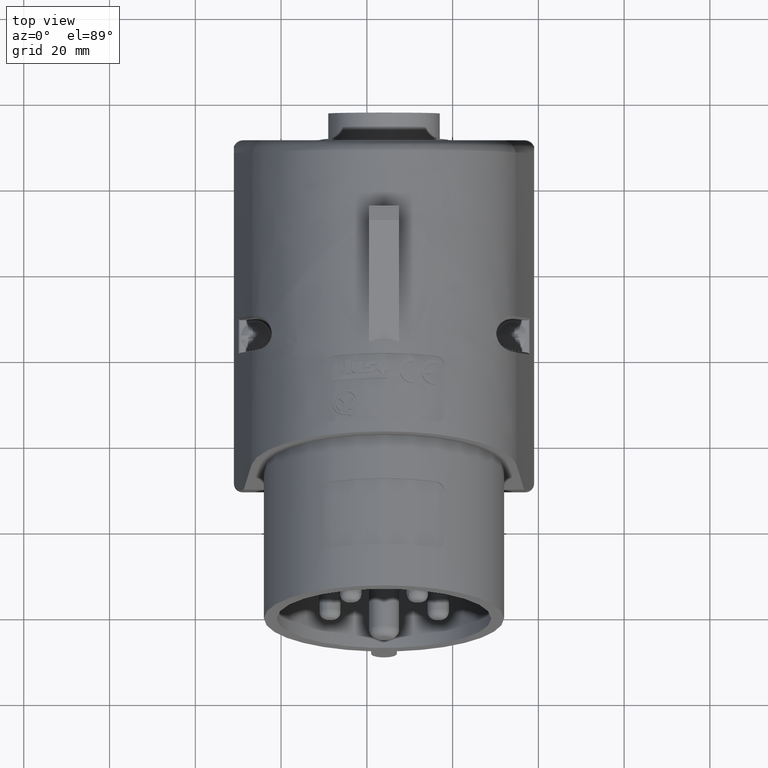
[diagram: clean part render]
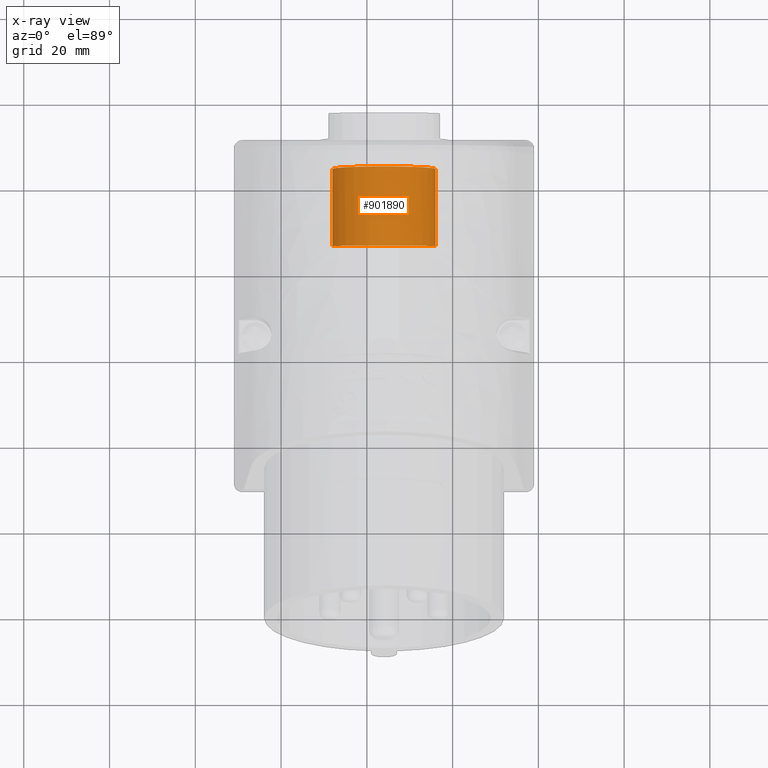
[diagram: x-ray — body ghosted, one internal face saturated and labeled with its STEP entity id]
A machine part, top view, then the same camera in x-ray: the body is ghosted and one INTERNAL B-rep face — a face not visible from any outside direction — is saturated and labeled: STEP entity #901890.
In plain terms, the highlighted cylindrical surface (partial cylindrical patch) has radius 12 mm, axis along (0, 1, 0).
Its self-contained STEP definition (entity closure, byte-faithful):
#900230=CARTESIAN_POINT('',(44.,126.69038554375,13.));
#900240=DIRECTION('',(0.,1.,0.));
#900250=DIRECTION('',(-1.,0.,0.));
#900260=AXIS2_PLACEMENT_3D('',#900230,#900240,#900250);
#900270=CIRCLE('',#900260,12.);
#900280=CARTESIAN_POINT('',(32.,126.69038554375,13.));
#900290=VERTEX_POINT('',#900280);
#900300=CARTESIAN_POINT('',(56.,126.69038554375,13.));
#900310=VERTEX_POINT('',#900300);
#900320=EDGE_CURVE('',#900290,#900310,#900270,.T.);
#900440=CARTESIAN_POINT('',(32.,151.69038554375,13.));
#900450=DIRECTION('',(0.,1.,0.));
#900460=VECTOR('',#900450,1.);
#900470=LINE('',#900440,#900460);
#900480=CARTESIAN_POINT('',(32.,144.708478924764,13.));
#900490=VERTEX_POINT('',#900480);
#900500=EDGE_CURVE('',#900290,#900490,#900470,.T.);
#900520=CARTESIAN_POINT('',(44.,144.708478924764,13.));
#900530=DIRECTION('',(0.,0.999390827019096,-0.034899496702501));
#900540=DIRECTION('',(0.,-0.0348994967025009,-0.999390827019096));
#900550=AXIS2_PLACEMENT_3D('',#900520,#900530,#900540);
#900560=ELLIPSE('',#900550,12.0073145315859,12.);
#900610=CARTESIAN_POINT('',(56.,144.708478924764,13.));
#900620=VERTEX_POINT('',#900610);
#900650=CARTESIAN_POINT('',(56.,151.69038554375,13.));
#900660=DIRECTION('',(0.,1.,0.));
#900670=VECTOR('',#900660,1.);
#900680=LINE('',#900650,#900670);
#900690=EDGE_CURVE('',#900310,#900620,#900680,.T.);
#900760=EDGE_CURVE('',#900490,#900620,#900560,.T.);
#901780=CARTESIAN_POINT('',(44.,151.69038554375,13.));
#901790=DIRECTION('',(0.,1.,0.));
#901800=DIRECTION('',(-1.,0.,0.));
#901810=AXIS2_PLACEMENT_3D('',#901780,#901790,#901800);
#901820=CYLINDRICAL_SURFACE('',#901810,12.);
#901830=ORIENTED_EDGE('',*,*,#900320,.F.);
#901840=ORIENTED_EDGE('',*,*,#900690,.F.);
#901850=ORIENTED_EDGE('',*,*,#900760,.T.);
#901860=ORIENTED_EDGE('',*,*,#900500,.T.);
#901870=EDGE_LOOP('',(#901860,#901850,#901840,#901830));
#901880=FACE_OUTER_BOUND('',#901870,.T.);
#901890=ADVANCED_FACE('',(#901880),#901820,.F.);